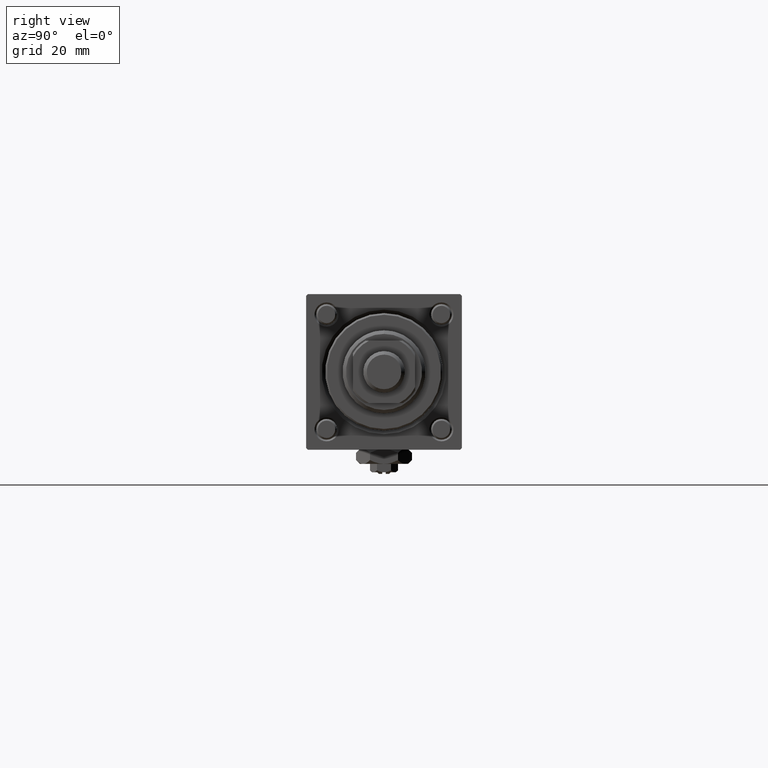
[diagram: clean part render]
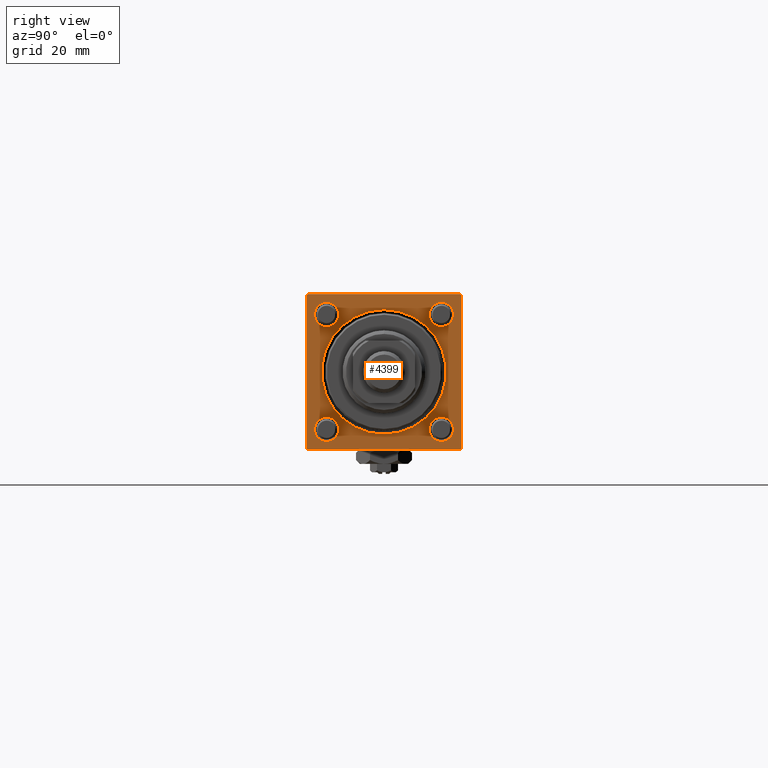
[diagram: same view with one face highlighted and labeled with its STEP entity id]
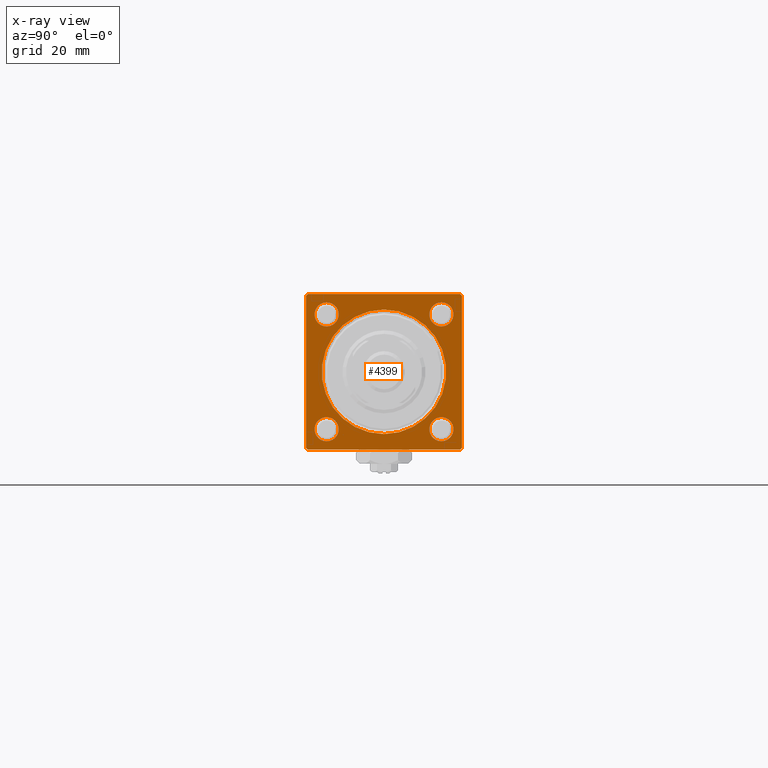
[diagram: x-ray of the same camera — body ghosted, the highlighted face saturated]
A machine part, right view. The second image highlights one B-rep face of the part: STEP entity #4399.
The next image is the same camera in x-ray: the body ghosted, the highlighted face saturated — about 0% of this face is hidden behind the body in this view.
In plain terms, the highlighted planar face has unit normal (-1, 0, 0).
Its self-contained STEP definition (entity closure, byte-faithful):
#448 = DIRECTION ( 'NONE',  ( -1.000000000000000000, 0.000000000000000000, -0.000000000000000000 ) ) ;
#1122 = VERTEX_POINT ( 'NONE', #40515 ) ;
#1484 = CARTESIAN_POINT ( 'NONE',  ( 153.0000000000000284, 16.59999999999999787, -20.09999999999998010 ) ) ;
#2290 = ORIENTED_EDGE ( 'NONE', *, *, #53428, .T. ) ;
#2683 = CARTESIAN_POINT ( 'NONE',  ( 153.0000000000000284, 16.59999999999999787, -16.60000000000000497 ) ) ;
#3848 = AXIS2_PLACEMENT_3D ( 'NONE', #57387, #15832, #34339 ) ;
#4199 = LINE ( 'NONE', #58819, #52907 ) ;
#4399 = ADVANCED_FACE ( 'NONE', ( #21250, #6086, #20946, #48852, #48560, #57640 ), #57949, .F. ) ;
#4481 = CARTESIAN_POINT ( 'NONE',  ( 153.0000000000000284, 16.59999999999999787, 16.60000000000000497 ) ) ;
#5177 = DIRECTION ( 'NONE',  ( -1.000000000000000000, 0.000000000000000000, -0.000000000000000000 ) ) ;
#5577 = EDGE_LOOP ( 'NONE', ( #29780, #39271 ) ) ;
#5613 = EDGE_CURVE ( 'NONE', #23428, #40165, #54936, .T. ) ;
#5697 = DIRECTION ( 'NONE',  ( 0.000000000000000000, -0.7071067811865474617, 0.7071067811865474617 ) ) ;
#5857 = DIRECTION ( 'NONE',  ( -0.000000000000000000, 0.7071067811865376918, 0.7071067811865574537 ) ) ;
#6086 = FACE_BOUND ( 'NONE', #5577, .T. ) ;
#6587 = LINE ( 'NONE', #52686, #13941 ) ;
#6965 = LINE ( 'NONE', #34890, #37221 ) ;
#7373 = CARTESIAN_POINT ( 'NONE',  ( 153.0000000000000284, 22.50000000000000355, -21.99999999999995381 ) ) ;
#7493 = AXIS2_PLACEMENT_3D ( 'NONE', #4481, #18145, #46950 ) ;
#7945 = DIRECTION ( 'NONE',  ( 0.000000000000000000, 0.000000000000000000, 1.000000000000000000 ) ) ;
#7987 = CARTESIAN_POINT ( 'NONE',  ( 153.0000000000000284, 21.99999999999998934, -22.49999999999999645 ) ) ;
#9149 = CARTESIAN_POINT ( 'NONE',  ( 153.0000000000000284, 16.59999999999999787, -16.60000000000000497 ) ) ;
#9389 = ORIENTED_EDGE ( 'NONE', *, *, #46070, .T. ) ;
#9548 = CIRCLE ( 'NONE', #25056, 3.499999999999975131 ) ;
#9564 = CARTESIAN_POINT ( 'NONE',  ( 153.0000000000000284, 22.50000000000000355, 22.50000000000000355 ) ) ;
#9801 = CIRCLE ( 'NONE', #55312, 3.499999999999975131 ) ;
#9833 = CARTESIAN_POINT ( 'NONE',  ( 153.0000000000000284, -21.99999999999999645, 22.49999999999999289 ) ) ;
#10236 = CARTESIAN_POINT ( 'NONE',  ( 153.0000000000000284, -16.59999999999999076, 13.10000000000003162 ) ) ;
#11096 = CARTESIAN_POINT ( 'NONE',  ( 153.0000000000000284, -16.59999999999999076, 16.60000000000000853 ) ) ;
#11336 = DIRECTION ( 'NONE',  ( 0.000000000000000000, -1.000000000000000000, -7.709882115452476934E-17 ) ) ;
#11484 = ORIENTED_EDGE ( 'NONE', *, *, #36182, .T. ) ;
#11603 = CIRCLE ( 'NONE', #45520, 3.499999999999975131 ) ;
#12221 = CIRCLE ( 'NONE', #18059, 3.500000000000016875 ) ;
#12569 = EDGE_CURVE ( 'NONE', #58411, #19921, #54628, .T. ) ;
#13662 = VERTEX_POINT ( 'NONE', #54402 ) ;
#13902 = EDGE_CURVE ( 'NONE', #58134, #54885, #53258, .T. ) ;
#13941 = VECTOR ( 'NONE', #49581, 1000.000000000000000 ) ;
#14067 = CARTESIAN_POINT ( 'NONE',  ( 153.0000000000000284, 0.000000000000000000, 0.000000000000000000 ) ) ;
#14164 = EDGE_CURVE ( 'NONE', #56465, #13662, #11603, .T. ) ;
#14175 = ORIENTED_EDGE ( 'NONE', *, *, #40431, .T. ) ;
#14332 = CARTESIAN_POINT ( 'NONE',  ( 153.0000000000000284, -16.59999999999999076, -13.09999999999999076 ) ) ;
#14410 = CARTESIAN_POINT ( 'NONE',  ( 153.0000000000000284, 16.59999999999999787, 16.60000000000000497 ) ) ;
#14698 = EDGE_CURVE ( 'NONE', #51612, #37606, #9548, .T. ) ;
#15138 = VECTOR ( 'NONE', #5857, 999.9999999999998863 ) ;
#15456 = ORIENTED_EDGE ( 'NONE', *, *, #46793, .T. ) ;
#15832 = DIRECTION ( 'NONE',  ( -1.000000000000000000, 0.000000000000000000, -0.000000000000000000 ) ) ;
#16757 = EDGE_CURVE ( 'NONE', #16878, #19921, #47756, .T. ) ;
#16878 = VERTEX_POINT ( 'NONE', #7987 ) ;
#17834 = CARTESIAN_POINT ( 'NONE',  ( 153.0000000000000284, -16.59999999999999076, -20.10000000000002274 ) ) ;
#18059 = AXIS2_PLACEMENT_3D ( 'NONE', #24598, #52507, #29766 ) ;
#18145 = DIRECTION ( 'NONE',  ( -1.000000000000000000, 0.000000000000000000, -0.000000000000000000 ) ) ;
#19921 = VERTEX_POINT ( 'NONE', #45091 ) ;
#20136 = ORIENTED_EDGE ( 'NONE', *, *, #14698, .T. ) ;
#20946 = FACE_BOUND ( 'NONE', #21150, .T. ) ;
#21150 = EDGE_LOOP ( 'NONE', ( #40775, #9389 ) ) ;
#21250 = FACE_BOUND ( 'NONE', #42919, .T. ) ;
#21308 = CARTESIAN_POINT ( 'NONE',  ( 153.0000000000000284, -16.59999999999999076, 16.60000000000000853 ) ) ;
#21506 = DIRECTION ( 'NONE',  ( -1.000000000000000000, 0.000000000000000000, -0.000000000000000000 ) ) ;
#22106 = VERTEX_POINT ( 'NONE', #9833 ) ;
#23428 = VERTEX_POINT ( 'NONE', #1484 ) ;
#23455 = EDGE_CURVE ( 'NONE', #40165, #23428, #9801, .T. ) ;
#23589 = CARTESIAN_POINT ( 'NONE',  ( 153.0000000000000284, 22.00000000000000355, 22.50000000000000355 ) ) ;
#24529 = VERTEX_POINT ( 'NONE', #36276 ) ;
#24582 = DIRECTION ( 'NONE',  ( -0.000000000000000000, 0.000000000000000000, 1.000000000000000000 ) ) ;
#24598 = CARTESIAN_POINT ( 'NONE',  ( 153.0000000000000284, -16.59999999999999076, -16.60000000000000853 ) ) ;
#24655 = CARTESIAN_POINT ( 'NONE',  ( 153.0000000000000284, 22.50000000000000355, -21.99999999999996803 ) ) ;
#24794 = EDGE_CURVE ( 'NONE', #26259, #1122, #39898, .T. ) ;
#24808 = CIRCLE ( 'NONE', #34475, 18.00000000000000355 ) ;
#25056 = AXIS2_PLACEMENT_3D ( 'NONE', #21308, #44679, #7945 ) ;
#25476 = DIRECTION ( 'NONE',  ( 0.000000000000000000, 0.000000000000000000, -1.000000000000000000 ) ) ;
#25646 = VECTOR ( 'NONE', #32030, 1000.000000000000000 ) ;
#26259 = VERTEX_POINT ( 'NONE', #59668 ) ;
#27344 = LINE ( 'NONE', #36762, #37342 ) ;
#28685 = VERTEX_POINT ( 'NONE', #56460 ) ;
#28874 = EDGE_LOOP ( 'NONE', ( #15456, #50789, #30902, #29331, #32525, #14175, #53651, #11484 ) ) ;
#28998 = DIRECTION ( 'NONE',  ( -1.000000000000000000, 0.000000000000000000, -0.000000000000000000 ) ) ;
#29331 = ORIENTED_EDGE ( 'NONE', *, *, #42966, .T. ) ;
#29597 = DIRECTION ( 'NONE',  ( 0.000000000000000000, 0.000000000000000000, 1.000000000000000000 ) ) ;
#29766 = DIRECTION ( 'NONE',  ( 0.000000000000000000, 0.000000000000000000, 1.000000000000000000 ) ) ;
#29780 = ORIENTED_EDGE ( 'NONE', *, *, #5613, .T. ) ;
#30166 = DIRECTION ( 'NONE',  ( 0.000000000000000000, 0.000000000000000000, 1.000000000000000000 ) ) ;
#30346 = CARTESIAN_POINT ( 'NONE',  ( 153.0000000000000284, 0.000000000000000000, 0.000000000000000000 ) ) ;
#30902 = ORIENTED_EDGE ( 'NONE', *, *, #16757, .F. ) ;
#31370 = EDGE_CURVE ( 'NONE', #37606, #51612, #44806, .T. ) ;
#32030 = DIRECTION ( 'NONE',  ( 0.000000000000000000, -1.000000000000000000, -2.312964634635742957E-16 ) ) ;
#32178 = AXIS2_PLACEMENT_3D ( 'NONE', #11096, #28998, #29597 ) ;
#32230 = ORIENTED_EDGE ( 'NONE', *, *, #41884, .T. ) ;
#32316 = DIRECTION ( 'NONE',  ( 0.000000000000000000, 0.000000000000000000, 1.000000000000000000 ) ) ;
#32349 = VERTEX_POINT ( 'NONE', #23589 ) ;
#32525 = ORIENTED_EDGE ( 'NONE', *, *, #36688, .F. ) ;
#34339 = DIRECTION ( 'NONE',  ( 0.000000000000000000, 0.000000000000000000, 1.000000000000000000 ) ) ;
#34475 = AXIS2_PLACEMENT_3D ( 'NONE', #14067, #42587, #50781 ) ;
#34552 = AXIS2_PLACEMENT_3D ( 'NONE', #30346, #39782, #24582 ) ;
#34720 = CARTESIAN_POINT ( 'NONE',  ( 153.0000000000000284, 0.000000000000000000, 0.000000000000000000 ) ) ;
#34890 = CARTESIAN_POINT ( 'NONE',  ( 153.0000000000000284, 22.50000000000000355, 22.50000000000000355 ) ) ;
#35759 = ORIENTED_EDGE ( 'NONE', *, *, #24794, .T. ) ;
#36182 = EDGE_CURVE ( 'NONE', #22106, #28685, #6587, .T. ) ;
#36276 = CARTESIAN_POINT ( 'NONE',  ( 153.0000000000000284, 22.50000000000000355, 22.00000000000000355 ) ) ;
#36558 = AXIS2_PLACEMENT_3D ( 'NONE', #9149, #5177, #42812 ) ;
#36688 = EDGE_CURVE ( 'NONE', #24529, #53344, #6965, .T. ) ;
#36762 = CARTESIAN_POINT ( 'NONE',  ( 153.0000000000000284, 22.00000000000000355, 22.50000000000000355 ) ) ;
#37221 = VECTOR ( 'NONE', #25476, 1000.000000000000000 ) ;
#37342 = VECTOR ( 'NONE', #5697, 1000.000000000000114 ) ;
#37606 = VERTEX_POINT ( 'NONE', #58656 ) ;
#38313 = EDGE_CURVE ( 'NONE', #32349, #22106, #51124, .T. ) ;
#38679 = CARTESIAN_POINT ( 'NONE',  ( 153.0000000000000284, 22.50000000000000355, -22.49999999999999645 ) ) ;
#39271 = ORIENTED_EDGE ( 'NONE', *, *, #23455, .T. ) ;
#39483 = CIRCLE ( 'NONE', #7493, 3.499999999999975131 ) ;
#39782 = DIRECTION ( 'NONE',  ( -1.000000000000000000, 0.000000000000000000, -0.000000000000000000 ) ) ;
#39898 = CIRCLE ( 'NONE', #52412, 18.00000000000000355 ) ;
#40055 = DIRECTION ( 'NONE',  ( 0.000000000000000000, 0.000000000000000000, -1.000000000000000000 ) ) ;
#40165 = VERTEX_POINT ( 'NONE', #42572 ) ;
#40431 = EDGE_CURVE ( 'NONE', #24529, #32349, #27344, .T. ) ;
#40515 = CARTESIAN_POINT ( 'NONE',  ( 153.0000000000000284, 2.204364238465235822E-15, 18.00000000000000355 ) ) ;
#40775 = ORIENTED_EDGE ( 'NONE', *, *, #14164, .T. ) ;
#41884 = EDGE_CURVE ( 'NONE', #1122, #26259, #24808, .T. ) ;
#42572 = CARTESIAN_POINT ( 'NONE',  ( 153.0000000000000284, 16.59999999999999787, -13.10000000000002807 ) ) ;
#42587 = DIRECTION ( 'NONE',  ( -1.000000000000000000, 0.000000000000000000, -0.000000000000000000 ) ) ;
#42812 = DIRECTION ( 'NONE',  ( 0.000000000000000000, 0.000000000000000000, 1.000000000000000000 ) ) ;
#42919 = EDGE_LOOP ( 'NONE', ( #2290, #44164 ) ) ;
#42966 = EDGE_CURVE ( 'NONE', #16878, #53344, #43493, .T. ) ;
#43464 = ORIENTED_EDGE ( 'NONE', *, *, #31370, .T. ) ;
#43493 = LINE ( 'NONE', #24655, #15138 ) ;
#44164 = ORIENTED_EDGE ( 'NONE', *, *, #13902, .T. ) ;
#44270 = DIRECTION ( 'NONE',  ( 0.000000000000000000, 0.000000000000000000, 1.000000000000000000 ) ) ;
#44679 = DIRECTION ( 'NONE',  ( -1.000000000000000000, 0.000000000000000000, -0.000000000000000000 ) ) ;
#44806 = CIRCLE ( 'NONE', #32178, 3.499999999999975131 ) ;
#45091 = CARTESIAN_POINT ( 'NONE',  ( 153.0000000000000284, -21.99999999999998224, -22.50000000000000000 ) ) ;
#45520 = AXIS2_PLACEMENT_3D ( 'NONE', #14410, #448, #32316 ) ;
#45566 = DIRECTION ( 'NONE',  ( 0.000000000000000000, 0.7071067811865425767, -0.7071067811865525687 ) ) ;
#46070 = EDGE_CURVE ( 'NONE', #13662, #56465, #39483, .T. ) ;
#46793 = EDGE_CURVE ( 'NONE', #28685, #58411, #4199, .T. ) ;
#46950 = DIRECTION ( 'NONE',  ( 0.000000000000000000, 0.000000000000000000, 1.000000000000000000 ) ) ;
#47357 = VECTOR ( 'NONE', #11336, 1000.000000000000000 ) ;
#47756 = LINE ( 'NONE', #38679, #47357 ) ;
#48560 = FACE_BOUND ( 'NONE', #49206, .T. ) ;
#48852 = FACE_BOUND ( 'NONE', #49114, .T. ) ;
#48966 = DIRECTION ( 'NONE',  ( -1.000000000000000000, 0.000000000000000000, -0.000000000000000000 ) ) ;
#49114 = EDGE_LOOP ( 'NONE', ( #20136, #43464 ) ) ;
#49206 = EDGE_LOOP ( 'NONE', ( #35759, #32230 ) ) ;
#49581 = DIRECTION ( 'NONE',  ( -0.000000000000000000, -0.7071067811865378028, -0.7071067811865573427 ) ) ;
#49802 = CARTESIAN_POINT ( 'NONE',  ( 153.0000000000000284, -22.49999999999999645, -21.99999999999997868 ) ) ;
#50315 = VECTOR ( 'NONE', #45566, 999.9999999999998863 ) ;
#50781 = DIRECTION ( 'NONE',  ( 0.000000000000000000, 0.000000000000000000, 1.000000000000000000 ) ) ;
#50789 = ORIENTED_EDGE ( 'NONE', *, *, #12569, .T. ) ;
#50829 = CARTESIAN_POINT ( 'NONE',  ( 153.0000000000000284, 16.59999999999999787, 13.10000000000002807 ) ) ;
#51124 = LINE ( 'NONE', #9564, #25646 ) ;
#51612 = VERTEX_POINT ( 'NONE', #10236 ) ;
#52412 = AXIS2_PLACEMENT_3D ( 'NONE', #34720, #48966, #30166 ) ;
#52507 = DIRECTION ( 'NONE',  ( -1.000000000000000000, 0.000000000000000000, -0.000000000000000000 ) ) ;
#52686 = CARTESIAN_POINT ( 'NONE',  ( 153.0000000000000284, -22.49999999999999645, 21.99999999999999289 ) ) ;
#52907 = VECTOR ( 'NONE', #40055, 1000.000000000000000 ) ;
#53258 = CIRCLE ( 'NONE', #3848, 3.500000000000016875 ) ;
#53344 = VERTEX_POINT ( 'NONE', #7373 ) ;
#53428 = EDGE_CURVE ( 'NONE', #54885, #58134, #12221, .T. ) ;
#53651 = ORIENTED_EDGE ( 'NONE', *, *, #38313, .T. ) ;
#54342 = CARTESIAN_POINT ( 'NONE',  ( 153.0000000000000284, -21.99999999999999645, -22.50000000000000000 ) ) ;
#54402 = CARTESIAN_POINT ( 'NONE',  ( 153.0000000000000284, 16.59999999999999787, 20.09999999999998010 ) ) ;
#54628 = LINE ( 'NONE', #54342, #50315 ) ;
#54885 = VERTEX_POINT ( 'NONE', #17834 ) ;
#54936 = CIRCLE ( 'NONE', #36558, 3.499999999999975131 ) ;
#55312 = AXIS2_PLACEMENT_3D ( 'NONE', #2683, #21506, #44270 ) ;
#56460 = CARTESIAN_POINT ( 'NONE',  ( 153.0000000000000284, -22.49999999999999645, 21.99999999999999289 ) ) ;
#56465 = VERTEX_POINT ( 'NONE', #50829 ) ;
#57387 = CARTESIAN_POINT ( 'NONE',  ( 153.0000000000000284, -16.59999999999999076, -16.60000000000000853 ) ) ;
#57640 = FACE_OUTER_BOUND ( 'NONE', #28874, .T. ) ;
#57949 = PLANE ( 'NONE',  #34552 ) ;
#58134 = VERTEX_POINT ( 'NONE', #14332 ) ;
#58411 = VERTEX_POINT ( 'NONE', #49802 ) ;
#58656 = CARTESIAN_POINT ( 'NONE',  ( 153.0000000000000284, -16.59999999999999076, 20.09999999999998721 ) ) ;
#58819 = CARTESIAN_POINT ( 'NONE',  ( 153.0000000000000284, -22.49999999999999645, 22.49999999999999289 ) ) ;
#59668 = CARTESIAN_POINT ( 'NONE',  ( 153.0000000000000284, 0.000000000000000000, -18.00000000000000355 ) ) ;